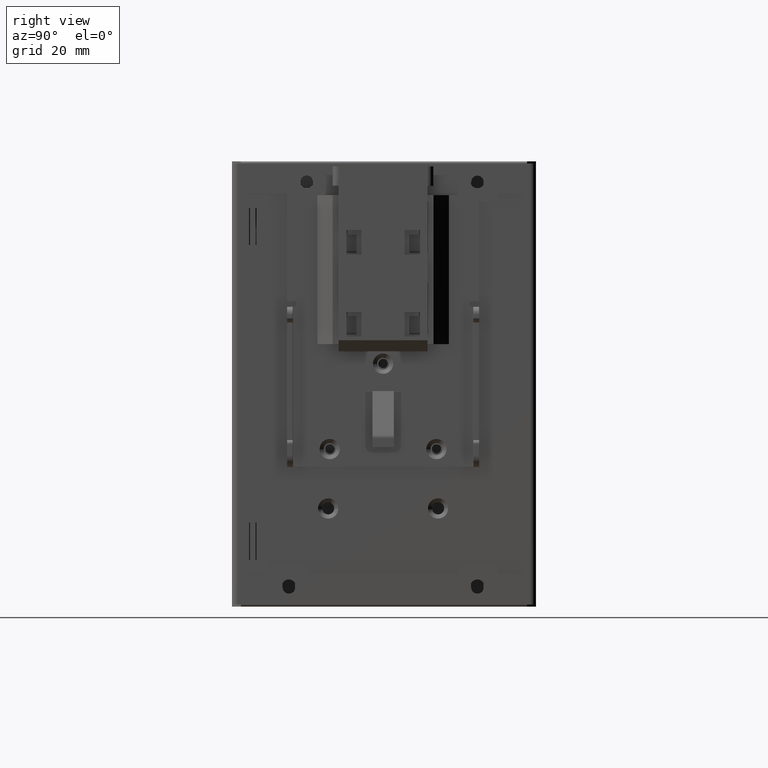
[diagram: clean part render]
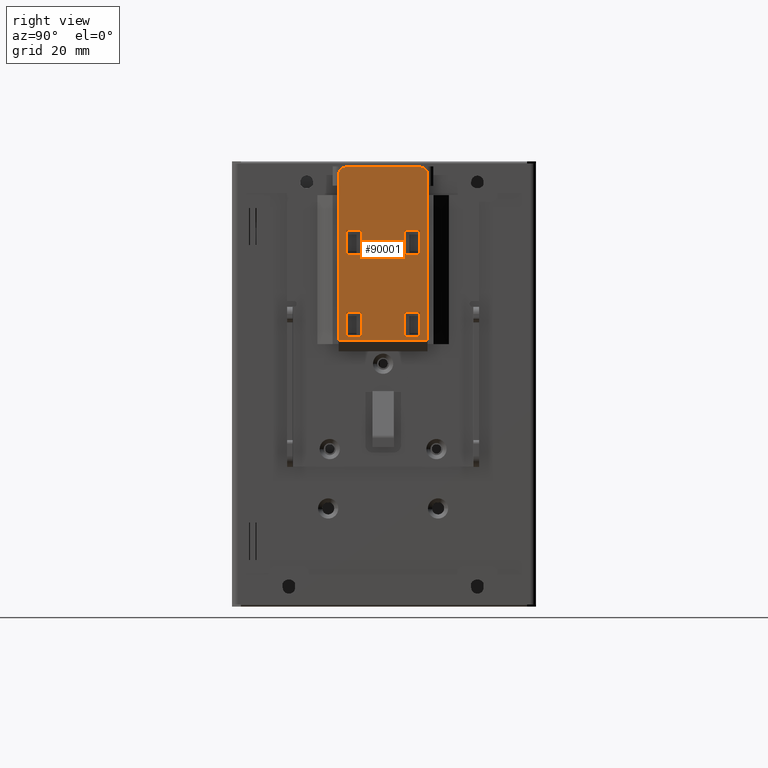
[diagram: same view with one face highlighted and labeled with its STEP entity id]
A machine part, right view. The second image highlights one B-rep face of the part: STEP entity #90001.
In plain terms, the highlighted planar face has unit normal (1, 0, 0).
Its self-contained STEP definition (entity closure, byte-faithful):
#89714=CARTESIAN_POINT('',(1646.293504165259900,49.948278184499699,8941.870437305480700));
#89715=VERTEX_POINT('',#89714);
#89722=CARTESIAN_POINT('',(1646.293504165259900,45.628215184499808,8941.870437305480700));
#89723=VERTEX_POINT('',#89722);
#89724=CARTESIAN_POINT('',(1646.293504165259900,49.948278184499699,8941.870437305480700));
#89725=DIRECTION('',(0.0,-1.0,0.0));
#89726=VECTOR('',#89725,4.320062999999891);
#89727=LINE('',#89724,#89726);
#89728=EDGE_CURVE('',#89715,#89723,#89727,.T.);
#89746=CARTESIAN_POINT('',(1646.293504165259900,49.948278184499500,8948.779458305480100));
#89747=VERTEX_POINT('',#89746);
#89754=CARTESIAN_POINT('',(1646.293504165259900,49.948278184499500,8948.779458305480100));
#89755=DIRECTION('',(0.0,0.0,-1.0));
#89756=VECTOR('',#89755,6.909020999999484);
#89757=LINE('',#89754,#89756);
#89758=EDGE_CURVE('',#89747,#89715,#89757,.T.);
#89801=CARTESIAN_POINT('',(1646.293504165259900,45.628215184499595,8948.779458305480100));
#89802=VERTEX_POINT('',#89801);
#89803=CARTESIAN_POINT('',(1646.293504165259900,45.628215184499808,8941.870437305480700));
#89804=DIRECTION('',(0.0,0.0,1.0));
#89805=VECTOR('',#89804,6.909020999999484);
#89806=LINE('',#89803,#89805);
#89807=EDGE_CURVE('',#89723,#89802,#89806,.T.);
#89826=CARTESIAN_POINT('',(1646.293504165259900,45.628215184499595,8948.779458305480100));
#89827=DIRECTION('',(0.0,1.0,0.0));
#89828=VECTOR('',#89827,4.320062999999905);
#89829=LINE('',#89826,#89828);
#89830=EDGE_CURVE('',#89802,#89747,#89829,.T.);
#89836=CARTESIAN_POINT('',(1646.293504165259900,68.486137394650100,8924.402254619821200));
#89837=DIRECTION('',(-1.0,0.0,0.0));
#89838=DIRECTION('',(0.0,0.0,1.0));
#89839=AXIS2_PLACEMENT_3D('',#89836,#89837,#89838);
#89840=PLANE('',#89839);
#89841=CARTESIAN_POINT('',(1646.293504165259900,68.486137394650100,8926.142254619819100));
#89842=VERTEX_POINT('',#89841);
#89843=CARTESIAN_POINT('',(1646.293504165259900,68.486137394649887,8972.839877138150800));
#89844=VERTEX_POINT('',#89843);
#89845=CARTESIAN_POINT('',(1646.293504165259900,68.486137394650100,8926.142254619819100));
#89846=DIRECTION('',(0.0,0.0,1.0));
#89847=VECTOR('',#89846,46.697622518331627);
#89848=LINE('',#89845,#89847);
#89849=EDGE_CURVE('',#89842,#89844,#89848,.T.);
#89850=ORIENTED_EDGE('',*,*,#89849,.F.);
#89851=CARTESIAN_POINT('',(1646.293504165259900,66.486137394649887,8924.142254619819100));
#89852=VERTEX_POINT('',#89851);
#89853=CARTESIAN_POINT('',(1646.293504165259900,66.486137394650100,8926.142254619819100));
#89854=DIRECTION('',(1.0,0.0,0.0));
#89855=DIRECTION('',(0.0,0.0,1.0));
#89856=AXIS2_PLACEMENT_3D('',#89853,#89854,#89855);
#89857=CIRCLE('',#89856,2.0);
#89858=EDGE_CURVE('',#89852,#89842,#89857,.T.);
#89859=ORIENTED_EDGE('',*,*,#89858,.F.);
#89860=CARTESIAN_POINT('',(1646.293504165259900,45.486137394649901,8924.142254619819100));
#89861=VERTEX_POINT('',#89860);
#89862=CARTESIAN_POINT('',(1646.293504165259900,66.486137394649887,8924.142254619819100));
#89863=DIRECTION('',(0.0,-1.0,0.0));
#89864=VECTOR('',#89863,20.999999999999986);
#89865=LINE('',#89862,#89864);
#89866=EDGE_CURVE('',#89852,#89861,#89865,.T.);
#89867=ORIENTED_EDGE('',*,*,#89866,.T.);
#89868=CARTESIAN_POINT('',(1646.293504165259900,43.486137394650100,8926.142254619819100));
#89869=VERTEX_POINT('',#89868);
#89870=CARTESIAN_POINT('',(1646.293504165259900,45.486137394650108,8926.142254619819100));
#89871=DIRECTION('',(1.0,0.0,0.0));
#89872=DIRECTION('',(0.0,0.0,1.0));
#89873=AXIS2_PLACEMENT_3D('',#89870,#89871,#89872);
#89874=CIRCLE('',#89873,2.0);
#89875=EDGE_CURVE('',#89869,#89861,#89874,.T.);
#89876=ORIENTED_EDGE('',*,*,#89875,.F.);
#89877=CARTESIAN_POINT('',(1646.293504165259900,43.486137394649901,8972.839877138150800));
#89878=VERTEX_POINT('',#89877);
#89879=CARTESIAN_POINT('',(1646.293504165259900,43.486137394650100,8926.142254619819100));
#89880=DIRECTION('',(0.0,0.0,1.0));
#89881=VECTOR('',#89880,46.697622518331627);
#89882=LINE('',#89879,#89881);
#89883=EDGE_CURVE('',#89869,#89878,#89882,.T.);
#89884=ORIENTED_EDGE('',*,*,#89883,.T.);
#89885=CARTESIAN_POINT('',(1646.293504165259900,68.486137394649887,8972.839877138150800));
#89886=DIRECTION('',(0.0,-1.0,0.0));
#89887=VECTOR('',#89886,24.999999999999986);
#89888=LINE('',#89885,#89887);
#89889=EDGE_CURVE('',#89844,#89878,#89888,.T.);
#89890=ORIENTED_EDGE('',*,*,#89889,.F.);
#89891=EDGE_LOOP('',(#89850,#89859,#89867,#89876,#89884,#89890));
#89892=FACE_OUTER_BOUND('',#89891,.T.);
#89893=ORIENTED_EDGE('',*,*,#89830,.F.);
#89894=ORIENTED_EDGE('',*,*,#89807,.F.);
#89895=ORIENTED_EDGE('',*,*,#89728,.F.);
#89896=ORIENTED_EDGE('',*,*,#89758,.F.);
#89897=EDGE_LOOP('',(#89893,#89894,#89895,#89896));
#89898=FACE_BOUND('',#89897,.T.);
#89899=CARTESIAN_POINT('',(1646.293504165259900,45.655406184499505,8964.876862305480200));
#89900=VERTEX_POINT('',#89899);
#89901=CARTESIAN_POINT('',(1646.293504165259900,45.655406184499505,8971.771310305481200));
#89902=VERTEX_POINT('',#89901);
#89903=CARTESIAN_POINT('',(1646.293504165259900,45.655406184499505,8964.876862305480200));
#89904=DIRECTION('',(0.0,0.0,1.0));
#89905=VECTOR('',#89904,6.894448000000921);
#89906=LINE('',#89903,#89905);
#89907=EDGE_CURVE('',#89900,#89902,#89906,.T.);
#89908=ORIENTED_EDGE('',*,*,#89907,.F.);
#89909=CARTESIAN_POINT('',(1646.293504165259900,49.948278184499500,8964.876862305480200));
#89910=VERTEX_POINT('',#89909);
#89911=CARTESIAN_POINT('',(1646.293504165259900,49.948278184499500,8964.876862305480200));
#89912=DIRECTION('',(0.0,-1.0,0.0));
#89913=VECTOR('',#89912,4.292871999999996);
#89914=LINE('',#89911,#89913);
#89915=EDGE_CURVE('',#89910,#89900,#89914,.T.);
#89916=ORIENTED_EDGE('',*,*,#89915,.F.);
#89917=CARTESIAN_POINT('',(1646.293504165259900,49.948278184499500,8971.771310305481200));
#89918=VERTEX_POINT('',#89917);
#89919=CARTESIAN_POINT('',(1646.293504165259900,49.948278184499500,8971.771310305481200));
#89920=DIRECTION('',(0.0,0.0,-1.0));
#89921=VECTOR('',#89920,6.894448000000921);
#89922=LINE('',#89919,#89921);
#89923=EDGE_CURVE('',#89918,#89910,#89922,.T.);
#89924=ORIENTED_EDGE('',*,*,#89923,.F.);
#89925=CARTESIAN_POINT('',(1646.293504165259900,45.655406184499505,8971.771310305481200));
#89926=DIRECTION('',(0.0,1.0,0.0));
#89927=VECTOR('',#89926,4.292871999999996);
#89928=LINE('',#89925,#89927);
#89929=EDGE_CURVE('',#89902,#89918,#89928,.T.);
#89930=ORIENTED_EDGE('',*,*,#89929,.F.);
#89931=EDGE_LOOP('',(#89908,#89916,#89924,#89930));
#89932=FACE_BOUND('',#89931,.T.);
#89933=CARTESIAN_POINT('',(1646.293504165259900,66.321443184499486,8964.876862305480200));
#89934=VERTEX_POINT('',#89933);
#89935=CARTESIAN_POINT('',(1646.293504165259900,62.035023184499607,8964.876862305480200));
#89936=VERTEX_POINT('',#89935);
#89937=CARTESIAN_POINT('',(1646.293504165259900,66.321443184499486,8964.876862305480200));
#89938=DIRECTION('',(0.0,-1.0,0.0));
#89939=VECTOR('',#89938,4.286419999999879);
#89940=LINE('',#89937,#89939);
#89941=EDGE_CURVE('',#89934,#89936,#89940,.T.);
#89942=ORIENTED_EDGE('',*,*,#89941,.F.);
#89943=CARTESIAN_POINT('',(1646.293504165259900,66.321443184499486,8971.771310305481200));
#89944=VERTEX_POINT('',#89943);
#89945=CARTESIAN_POINT('',(1646.293504165259900,66.321443184499486,8971.771310305481200));
#89946=DIRECTION('',(0.0,0.0,-1.0));
#89947=VECTOR('',#89946,6.894448000000921);
#89948=LINE('',#89945,#89947);
#89949=EDGE_CURVE('',#89944,#89934,#89948,.T.);
#89950=ORIENTED_EDGE('',*,*,#89949,.F.);
#89951=CARTESIAN_POINT('',(1646.293504165259900,62.035023184499607,8971.771310305481200));
#89952=VERTEX_POINT('',#89951);
#89953=CARTESIAN_POINT('',(1646.293504165259900,62.035023184499607,8971.771310305481200));
#89954=DIRECTION('',(0.0,1.0,0.0));
#89955=VECTOR('',#89954,4.286419999999879);
#89956=LINE('',#89953,#89955);
#89957=EDGE_CURVE('',#89952,#89944,#89956,.T.);
#89958=ORIENTED_EDGE('',*,*,#89957,.F.);
#89959=CARTESIAN_POINT('',(1646.293504165259900,62.035023184499607,8964.876862305480200));
#89960=DIRECTION('',(0.0,0.0,1.0));
#89961=VECTOR('',#89960,6.894448000000921);
#89962=LINE('',#89959,#89961);
#89963=EDGE_CURVE('',#89936,#89952,#89962,.T.);
#89964=ORIENTED_EDGE('',*,*,#89963,.F.);
#89965=EDGE_LOOP('',(#89942,#89950,#89958,#89964));
#89966=FACE_BOUND('',#89965,.T.);
#89967=CARTESIAN_POINT('',(1646.293504165259900,62.035023184499806,8941.870437305480700));
#89968=VERTEX_POINT('',#89967);
#89969=CARTESIAN_POINT('',(1646.293504165259900,62.035023184499607,8948.779458305480100));
#89970=VERTEX_POINT('',#89969);
#89971=CARTESIAN_POINT('',(1646.293504165259900,62.035023184499806,8941.870437305480700));
#89972=DIRECTION('',(0.0,0.0,1.0));
#89973=VECTOR('',#89972,6.909020999999484);
#89974=LINE('',#89971,#89973);
#89975=EDGE_CURVE('',#89968,#89970,#89974,.T.);
#89976=ORIENTED_EDGE('',*,*,#89975,.F.);
#89977=CARTESIAN_POINT('',(1646.293504165259900,66.321443184499714,8941.870437305480700));
#89978=VERTEX_POINT('',#89977);
#89979=CARTESIAN_POINT('',(1646.293504165259900,66.321443184499714,8941.870437305480700));
#89980=DIRECTION('',(0.0,-1.0,0.0));
#89981=VECTOR('',#89980,4.286419999999907);
#89982=LINE('',#89979,#89981);
#89983=EDGE_CURVE('',#89978,#89968,#89982,.T.);
#89984=ORIENTED_EDGE('',*,*,#89983,.F.);
#89985=CARTESIAN_POINT('',(1646.293504165259900,66.321443184499486,8948.779458305480100));
#89986=VERTEX_POINT('',#89985);
#89987=CARTESIAN_POINT('',(1646.293504165259900,66.321443184499486,8948.779458305480100));
#89988=DIRECTION('',(0.0,0.0,-1.0));
#89989=VECTOR('',#89988,6.909020999999484);
#89990=LINE('',#89987,#89989);
#89991=EDGE_CURVE('',#89986,#89978,#89990,.T.);
#89992=ORIENTED_EDGE('',*,*,#89991,.F.);
#89993=CARTESIAN_POINT('',(1646.293504165259900,62.035023184499607,8948.779458305480100));
#89994=DIRECTION('',(0.0,1.0,0.0));
#89995=VECTOR('',#89994,4.286419999999879);
#89996=LINE('',#89993,#89995);
#89997=EDGE_CURVE('',#89970,#89986,#89996,.T.);
#89998=ORIENTED_EDGE('',*,*,#89997,.F.);
#89999=EDGE_LOOP('',(#89976,#89984,#89992,#89998));
#90000=FACE_BOUND('',#89999,.T.);
#90001=ADVANCED_FACE('',(#89892,#89898,#89932,#89966,#90000),#89840,.T.);